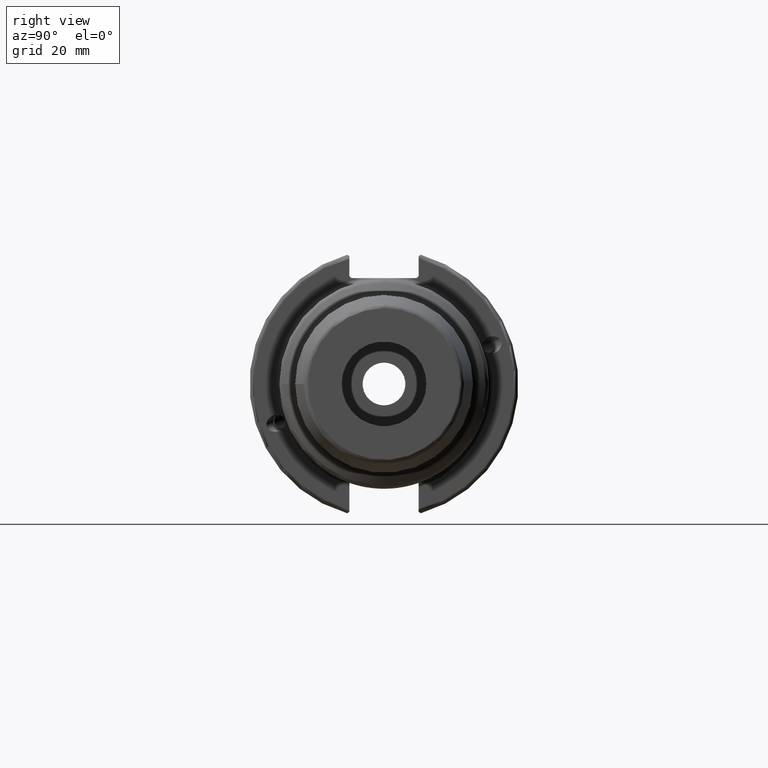
[diagram: clean part render]
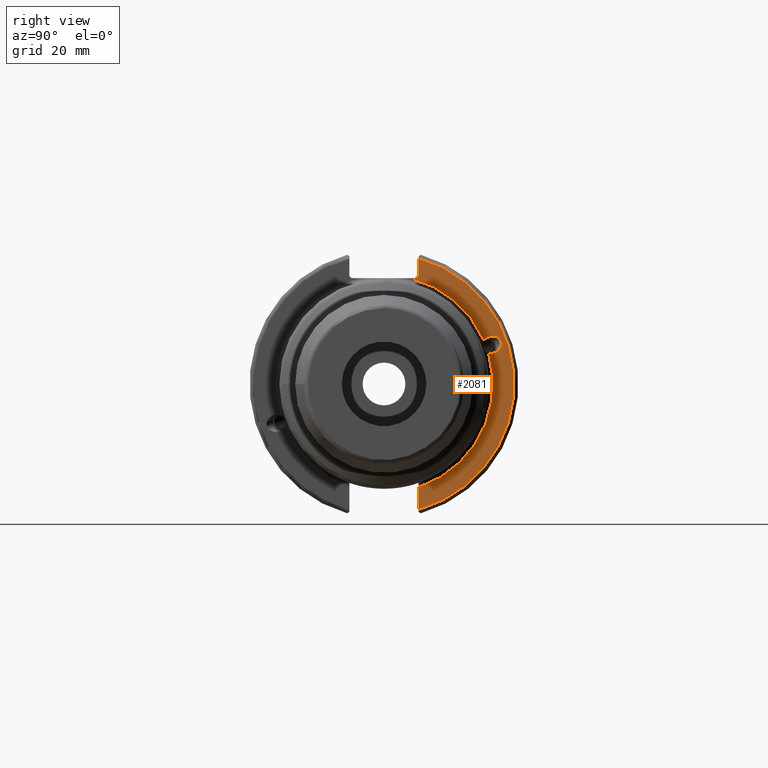
[diagram: same view with one face highlighted and labeled with its STEP entity id]
A machine part, right view. The second image highlights one B-rep face of the part: STEP entity #2081.
In plain terms, the highlighted planar face has unit normal (1, 0, 0).
Its self-contained STEP definition (entity closure, byte-faithful):
#32=ELLIPSE('',#2264,2.44154917752291,2.);
#137=PLANE('',#2262);
#184=FACE_OUTER_BOUND('',#293,.T.);
#293=EDGE_LOOP('',(#1471,#1472,#1473,#1474,#1475,#1476,#1477,#1478));
#408=LINE('',#3473,#502);
#409=LINE('',#3477,#503);
#410=LINE('',#3479,#504);
#411=LINE('',#3480,#505);
#502=VECTOR('',#2658,10.);
#503=VECTOR('',#2661,10.);
#504=VECTOR('',#2662,10.);
#505=VECTOR('',#2663,10.);
#635=CIRCLE('',#2257,25.75);
#636=CIRCLE('',#2258,25.75);
#638=CIRCLE('',#2263,30.75);
#813=VERTEX_POINT('',#3349);
#818=VERTEX_POINT('',#3410);
#819=VERTEX_POINT('',#3421);
#821=VERTEX_POINT('',#3440);
#826=VERTEX_POINT('',#3472);
#827=VERTEX_POINT('',#3474);
#828=VERTEX_POINT('',#3476);
#829=VERTEX_POINT('',#3478);
#1074=EDGE_CURVE('',#818,#819,#635,.T.);
#1077=EDGE_CURVE('',#821,#813,#636,.T.);
#1084=EDGE_CURVE('',#818,#826,#408,.T.);
#1085=EDGE_CURVE('',#827,#826,#638,.T.);
#1086=EDGE_CURVE('',#827,#828,#409,.T.);
#1087=EDGE_CURVE('',#829,#828,#410,.T.);
#1088=EDGE_CURVE('',#829,#813,#411,.T.);
#1089=EDGE_CURVE('',#821,#819,#32,.T.);
#1471=ORIENTED_EDGE('',*,*,#1074,.F.);
#1472=ORIENTED_EDGE('',*,*,#1084,.T.);
#1473=ORIENTED_EDGE('',*,*,#1085,.F.);
#1474=ORIENTED_EDGE('',*,*,#1086,.T.);
#1475=ORIENTED_EDGE('',*,*,#1087,.F.);
#1476=ORIENTED_EDGE('',*,*,#1088,.T.);
#1477=ORIENTED_EDGE('',*,*,#1077,.F.);
#1478=ORIENTED_EDGE('',*,*,#1089,.T.);
#2081=ADVANCED_FACE('',(#184),#137,.T.);
#2257=AXIS2_PLACEMENT_3D('',#3422,#2642,#2643);
#2258=AXIS2_PLACEMENT_3D('',#3459,#2644,#2645);
#2262=AXIS2_PLACEMENT_3D('',#3471,#2656,#2657);
#2263=AXIS2_PLACEMENT_3D('',#3475,#2659,#2660);
#2264=AXIS2_PLACEMENT_3D('',#3481,#2664,#2665);
#2642=DIRECTION('center_axis',(1.,0.,0.));
#2643=DIRECTION('ref_axis',(0.,0.897175917805481,-0.441673377633171));
#2644=DIRECTION('center_axis',(1.,0.,0.));
#2645=DIRECTION('ref_axis',(0.,-0.342020143325668,0.939692620785909));
#2656=DIRECTION('center_axis',(1.,0.,0.));
#2657=DIRECTION('ref_axis',(0.,0.,-1.));
#2658=DIRECTION('',(0.,0.,-1.));
#2659=DIRECTION('center_axis',(-1.,0.,0.));
#2660=DIRECTION('ref_axis',(0.,1.,-6.12323399573677E-17));
#2661=DIRECTION('',(0.,0.,-1.));
#2662=DIRECTION('',(0.,0.707106781186549,0.707106781186546));
#2663=DIRECTION('',(0.,-1.,0.));
#2664=DIRECTION('center_axis',(-1.,0.,0.));
#2665=DIRECTION('ref_axis',(5.68400912649003E-17,0.939692620785908,0.34202014332567));
#3349=CARTESIAN_POINT('',(19.05,6.16948133962652,25.));
#3410=CARTESIAN_POINT('',(19.05,8.19,-24.4128326910254));
#3421=CARTESIAN_POINT('',(19.05,24.7229487595808,7.19988226508893));
#3422=CARTESIAN_POINT('Origin',(19.05,0.,0.));
#3440=CARTESIAN_POINT('',(19.05,23.5668726259931,10.3761753372915));
#3459=CARTESIAN_POINT('Origin',(19.05,0.,0.));
#3471=CARTESIAN_POINT('Origin',(19.05,0.,0.));
#3472=CARTESIAN_POINT('',(19.05,8.19,-29.6392712461019));
#3473=CARTESIAN_POINT('',(19.05,8.19,-11.3));
#3474=CARTESIAN_POINT('',(19.05,8.19,29.6392712461019));
#3475=CARTESIAN_POINT('Origin',(19.05,0.,0.));
#3476=CARTESIAN_POINT('',(19.05,8.19,25.5));
#3477=CARTESIAN_POINT('',(19.05,8.19,12.5));
#3478=CARTESIAN_POINT('',(19.05,7.69,25.));
#3479=CARTESIAN_POINT('',(19.05,-0.35750000000001,16.9525));
#3480=CARTESIAN_POINT('',(19.05,0.,25.));
#3481=CARTESIAN_POINT('Origin',(19.05,25.3717007612195,9.23454386979306));